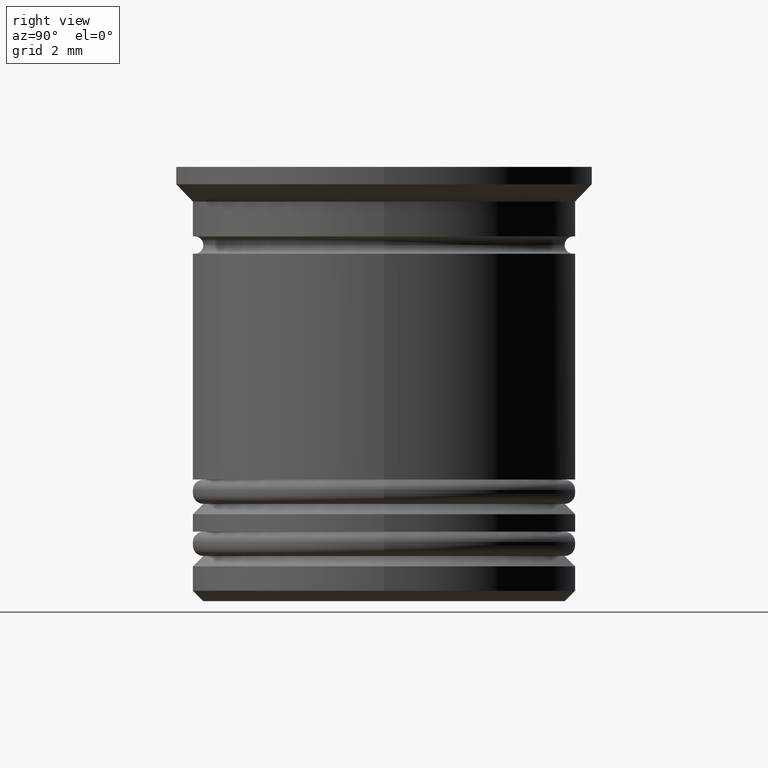
[diagram: clean part render]
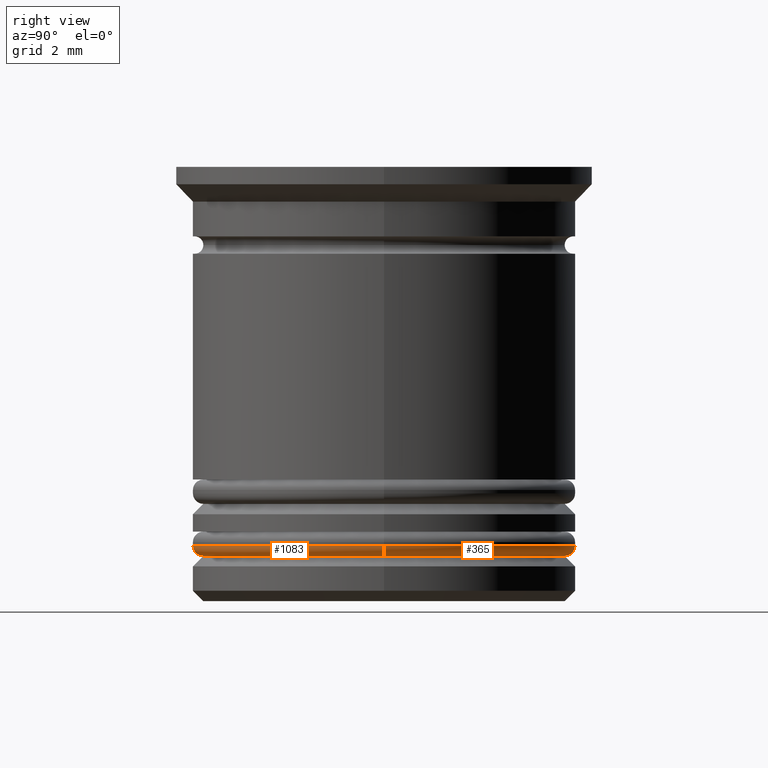
[diagram: same view with one multi-face feature highlighted, each face labeled with its STEP entity id]
A machine part, right view. The highlighted faces form ONE feature: a constant-radius fillet chain: 2 tangent blend faces with common blend radius 0.3 mm. The faces share edges in the B-rep.
Their STEP definitions:
[1] entity #365 (Torus):
#11 = CARTESIAN_POINT ( 'NONE',  ( 0.000000000000000000, 0.000000000000000000, -11.20000000000000462 ) ) ;
#25 = FACE_OUTER_BOUND ( 'NONE', #746, .T. ) ;
#77 = CARTESIAN_POINT ( 'NONE',  ( -5.200000000000001066, 6.368163355566238354E-16, -10.90000000000000746 ) ) ;
#119 = CIRCLE ( 'NONE', #291, 0.2999999999999999334 ) ;
#132 = DIRECTION ( 'NONE',  ( 1.000000000000000000, 0.000000000000000000, 0.000000000000000000 ) ) ;
#156 = VERTEX_POINT ( 'NONE', #683 ) ;
#202 = AXIS2_PLACEMENT_3D ( 'NONE', #11, #921, #132 ) ;
#291 = AXIS2_PLACEMENT_3D ( 'NONE', #438, #747, #1363 ) ;
#364 = CARTESIAN_POINT ( 'NONE',  ( 0.000000000000000000, 0.000000000000000000, -10.90000000000000746 ) ) ;
#365 = ADVANCED_FACE ( 'NONE', ( #25 ), #745, .T. ) ;
#373 = DIRECTION ( 'NONE',  ( 1.224646799147353207E-16, 1.000000000000000000, -0.000000000000000000 ) ) ;
#438 = CARTESIAN_POINT ( 'NONE',  ( 5.200000000000001066, 0.000000000000000000, -10.90000000000000746 ) ) ;
#561 = CIRCLE ( 'NONE', #202, 5.200000000000001066 ) ;
#668 = CARTESIAN_POINT ( 'NONE',  ( -5.200000000000001066, 6.551860375438340681E-16, -11.20000000000000462 ) ) ;
#675 = DIRECTION ( 'NONE',  ( 0.000000000000000000, 0.000000000000000000, 1.000000000000000000 ) ) ;
#683 = CARTESIAN_POINT ( 'NONE',  ( 5.200000000000001066, 0.000000000000000000, -11.20000000000000462 ) ) ;
#745 = TOROIDAL_SURFACE ( 'NONE', #877, 5.200000000000001066, 0.2999999999999999889 ) ;
#746 = EDGE_LOOP ( 'NONE', ( #1838, #967, #846, #891 ) ) ;
#747 = DIRECTION ( 'NONE',  ( 0.000000000000000000, -1.000000000000000000, 0.000000000000000000 ) ) ;
#759 = VERTEX_POINT ( 'NONE', #1734 ) ;
#846 = ORIENTED_EDGE ( 'NONE', *, *, #1783, .F. ) ;
#877 = AXIS2_PLACEMENT_3D ( 'NONE', #1840, #1370, #1987 ) ;
#879 = CIRCLE ( 'NONE', #1002, 0.2999999999999999334 ) ;
#891 = ORIENTED_EDGE ( 'NONE', *, *, #1080, .F. ) ;
#921 = DIRECTION ( 'NONE',  ( -0.000000000000000000, -0.000000000000000000, -1.000000000000000000 ) ) ;
#967 = ORIENTED_EDGE ( 'NONE', *, *, #1986, .T. ) ;
#972 = EDGE_CURVE ( 'NONE', #1048, #156, #561, .T. ) ;
#979 = DIRECTION ( 'NONE',  ( 1.000000000000000000, 0.000000000000000000, 0.000000000000000000 ) ) ;
#1002 = AXIS2_PLACEMENT_3D ( 'NONE', #77, #373, #1905 ) ;
#1048 = VERTEX_POINT ( 'NONE', #668 ) ;
#1070 = CARTESIAN_POINT ( 'NONE',  ( 5.500000000000001776, 0.000000000000000000, -10.90000000000000746 ) ) ;
#1080 = EDGE_CURVE ( 'NONE', #156, #1173, #119, .T. ) ;
#1162 = AXIS2_PLACEMENT_3D ( 'NONE', #364, #675, #979 ) ;
#1173 = VERTEX_POINT ( 'NONE', #1070 ) ;
#1363 = DIRECTION ( 'NONE',  ( 0.000000000000000000, 0.000000000000000000, -1.000000000000000000 ) ) ;
#1370 = DIRECTION ( 'NONE',  ( 0.000000000000000000, 0.000000000000000000, 1.000000000000000000 ) ) ;
#1734 = CARTESIAN_POINT ( 'NONE',  ( -5.500000000000001776, 6.735557395310443009E-16, -10.90000000000000746 ) ) ;
#1783 = EDGE_CURVE ( 'NONE', #1173, #759, #1785, .T. ) ;
#1785 = CIRCLE ( 'NONE', #1162, 5.500000000000001776 ) ;
#1838 = ORIENTED_EDGE ( 'NONE', *, *, #972, .F. ) ;
#1840 = CARTESIAN_POINT ( 'NONE',  ( 0.000000000000000000, 0.000000000000000000, -10.90000000000000746 ) ) ;
#1905 = DIRECTION ( 'NONE',  ( -1.000000000000000000, 1.224646799147353207E-16, 0.000000000000000000 ) ) ;
#1986 = EDGE_CURVE ( 'NONE', #1048, #759, #879, .T. ) ;
#1987 = DIRECTION ( 'NONE',  ( 1.000000000000000000, 0.000000000000000000, 0.000000000000000000 ) ) ;
[2] entity #1083 (Torus):
#77 = CARTESIAN_POINT ( 'NONE',  ( -5.200000000000001066, 6.368163355566238354E-16, -10.90000000000000746 ) ) ;
#119 = CIRCLE ( 'NONE', #291, 0.2999999999999999334 ) ;
#146 = AXIS2_PLACEMENT_3D ( 'NONE', #1628, #1018, #591 ) ;
#156 = VERTEX_POINT ( 'NONE', #683 ) ;
#225 = DIRECTION ( 'NONE',  ( 0.000000000000000000, 0.000000000000000000, 1.000000000000000000 ) ) ;
#232 = DIRECTION ( 'NONE',  ( 1.000000000000000000, 0.000000000000000000, 0.000000000000000000 ) ) ;
#291 = AXIS2_PLACEMENT_3D ( 'NONE', #438, #747, #1363 ) ;
#363 = CARTESIAN_POINT ( 'NONE',  ( 0.000000000000000000, 0.000000000000000000, -11.20000000000000462 ) ) ;
#373 = DIRECTION ( 'NONE',  ( 1.224646799147353207E-16, 1.000000000000000000, -0.000000000000000000 ) ) ;
#386 = CARTESIAN_POINT ( 'NONE',  ( 0.000000000000000000, 0.000000000000000000, -10.90000000000000746 ) ) ;
#438 = CARTESIAN_POINT ( 'NONE',  ( 5.200000000000001066, 0.000000000000000000, -10.90000000000000746 ) ) ;
#529 = EDGE_CURVE ( 'NONE', #156, #1048, #1657, .T. ) ;
#575 = EDGE_CURVE ( 'NONE', #759, #1173, #1973, .T. ) ;
#591 = DIRECTION ( 'NONE',  ( 1.000000000000000000, 0.000000000000000000, 0.000000000000000000 ) ) ;
#668 = CARTESIAN_POINT ( 'NONE',  ( -5.200000000000001066, 6.551860375438340681E-16, -11.20000000000000462 ) ) ;
#683 = CARTESIAN_POINT ( 'NONE',  ( 5.200000000000001066, 0.000000000000000000, -11.20000000000000462 ) ) ;
#747 = DIRECTION ( 'NONE',  ( 0.000000000000000000, -1.000000000000000000, 0.000000000000000000 ) ) ;
#759 = VERTEX_POINT ( 'NONE', #1734 ) ;
#879 = CIRCLE ( 'NONE', #1002, 0.2999999999999999334 ) ;
#1002 = AXIS2_PLACEMENT_3D ( 'NONE', #77, #373, #1905 ) ;
#1018 = DIRECTION ( 'NONE',  ( 0.000000000000000000, 0.000000000000000000, 1.000000000000000000 ) ) ;
#1048 = VERTEX_POINT ( 'NONE', #668 ) ;
#1052 = FACE_OUTER_BOUND ( 'NONE', #1209, .T. ) ;
#1069 = ORIENTED_EDGE ( 'NONE', *, *, #529, .F. ) ;
#1070 = CARTESIAN_POINT ( 'NONE',  ( 5.500000000000001776, 0.000000000000000000, -10.90000000000000746 ) ) ;
#1080 = EDGE_CURVE ( 'NONE', #156, #1173, #119, .T. ) ;
#1083 = ADVANCED_FACE ( 'NONE', ( #1052 ), #1229, .T. ) ;
#1173 = VERTEX_POINT ( 'NONE', #1070 ) ;
#1209 = EDGE_LOOP ( 'NONE', ( #1722, #1069, #1240, #1817 ) ) ;
#1229 = TOROIDAL_SURFACE ( 'NONE', #146, 5.200000000000001066, 0.2999999999999999889 ) ;
#1240 = ORIENTED_EDGE ( 'NONE', *, *, #1080, .T. ) ;
#1331 = AXIS2_PLACEMENT_3D ( 'NONE', #363, #1610, #1471 ) ;
#1363 = DIRECTION ( 'NONE',  ( 0.000000000000000000, 0.000000000000000000, -1.000000000000000000 ) ) ;
#1461 = AXIS2_PLACEMENT_3D ( 'NONE', #386, #225, #232 ) ;
#1471 = DIRECTION ( 'NONE',  ( 1.000000000000000000, 0.000000000000000000, 0.000000000000000000 ) ) ;
#1610 = DIRECTION ( 'NONE',  ( -0.000000000000000000, -0.000000000000000000, -1.000000000000000000 ) ) ;
#1628 = CARTESIAN_POINT ( 'NONE',  ( 0.000000000000000000, 0.000000000000000000, -10.90000000000000746 ) ) ;
#1657 = CIRCLE ( 'NONE', #1331, 5.200000000000001066 ) ;
#1722 = ORIENTED_EDGE ( 'NONE', *, *, #1986, .F. ) ;
#1734 = CARTESIAN_POINT ( 'NONE',  ( -5.500000000000001776, 6.735557395310443009E-16, -10.90000000000000746 ) ) ;
#1817 = ORIENTED_EDGE ( 'NONE', *, *, #575, .F. ) ;
#1905 = DIRECTION ( 'NONE',  ( -1.000000000000000000, 1.224646799147353207E-16, 0.000000000000000000 ) ) ;
#1973 = CIRCLE ( 'NONE', #1461, 5.500000000000001776 ) ;
#1986 = EDGE_CURVE ( 'NONE', #1048, #759, #879, .T. ) ;